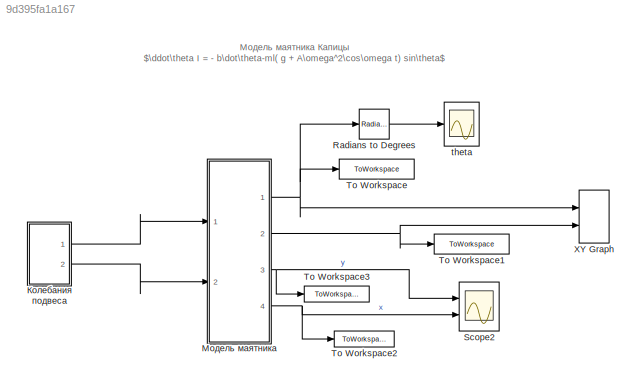
MODEL slx_9d395fa1a167
KIND model
CONFIG AbsTol = auto
CONFIG EnableMultiTasking = off
CONFIG FixedStep = auto
CONFIG MaxStep = 0.05
CONFIG MinStep = auto
CONFIG RelTol = 1e-3
CONFIG SampleTimeConstraint = Unconstrained
CONFIG SolverName = VariableStepAuto
CONFIG StartTime = 0.0
CONFIG StopTime = 10
BLOCK [Reference] Radians to Degrees  REF=simulink_extras/Transformations/Radians
to Degrees
  Ports = [1, 1]
  SourceBlock = simulink_extras/Transformations/Radians\nto Degrees
  SourceProductBaseCode = SL
  SourceType = RadiansToDegrees
BLOCK [Scope] Scope2
  Floating = off
  NumInputPorts = 2
  Ports = [2]
  ScopeSpecificationString = Simulink.scopes.TimeScopeBlockCfg('CurrentConfiguration', extmgr.ConfigurationSet(extmgr.Configuration('Core','General UI',true),extmgr.Configuration('Core','Source UI',true),extmgr.Configuration('Sources','WiredSimulink',true),extmgr.Configuration('Visuals','Time Domain',true,'SerializedDisplays',{struct('MinYLimReal','-3.67626','MaxYLimReal','23.63062','YLabelReal','','MinYLimMag','0.00000','Max...<+1744ch>
BLOCK [ToWorkspace] To Workspace
  FixptAsFi = on
  MaxDataPoints = inf
  Ports = [1]
  SampleTime = -1
  Save2DSignal = 2-D array (concatenate along first dimension)
  VariableName = theta
BLOCK [ToWorkspace] To Workspace1
  FixptAsFi = on
  MaxDataPoints = inf
  Ports = [1]
  SampleTime = -1
  Save2DSignal = 2-D array (concatenate along first dimension)
  VariableName = dtheta
BLOCK [ToWorkspace] To Workspace2
  FixptAsFi = on
  MaxDataPoints = inf
  Ports = [1]
  SampleTime = -1
  Save2DSignal = 2-D array (concatenate along first dimension)
  VariableName = x
BLOCK [ToWorkspace] To Workspace3
  FixptAsFi = on
  MaxDataPoints = inf
  Ports = [1]
  SampleTime = -1
  Save2DSignal = 2-D array (concatenate along first dimension)
  VariableName = y
BLOCK [Record] XY Graph
  CompatibilityTag = XY
  FileSettingsInternal = {"entries":[{"content":{"excelSettings":{"content":{},"type":"Streamout.ExcelSettings"}},"type":"Streamout.FileSettingStorage","uuid":"2b41360b-60dc-4d86-9c9c-00e56fdd2ad6"}],"packageUris":["http://schema.mathworks.com/mf0/streamout_blocks/R2020a"],"version":"1.0"}
  Layout = [1 1]
  Ports = [2]
  SignalsInternal = {"entries":[{"content":{"signals":[{"content":{"blockPath":["kapitsa/XY Graph"],"channel":[],"dimensions":[1],"domain":"kapitsa/XY Graph","lineColor":"#a2142f","plots":[1],"port":1,"sid":[""],"signalID":135,"signalName":"Модель маятника:1"},"type":"RecordBlkView.Signal","uuid":"1cd84f5e-f303-4587-a12b-356f26a2c5b0"},{"content":{"blockPath":["kapitsa/XY Graph"],"channel":[],"dimensions":[1],"domain...<+377ch>
  VisualizationBindings = {"xyplotplugin":{"info":[{"series":[{"bindingParametersList":[{"parameter":"X-Axis","signalID":135,"signalName":"РњРѕРґРµР»СЊ РјР°СЏС‚РЅРёРєР°:1"},{"parameter":"Y-Axis","signalID":139,"signalName":"РњРѕРґРµР»СЊ РјР°СЏС‚РЅРёРєР°:2"}],"seriesID":47545}],"subplotID":1}]}}
BLOCK [Scope] theta
  Floating = off
  NumInputPorts = 1
  Ports = [1]
  ScopeSpecificationString = Simulink.scopes.TimeScopeBlockCfg('CurrentConfiguration', extmgr.ConfigurationSet(extmgr.Configuration('Core','General UI',true),extmgr.Configuration('Core','Source UI',true),extmgr.Configuration('Sources','WiredSimulink',true,'DataLoggingVariableName','ScopeData1'),extmgr.Configuration('Visuals','Time Domain',true,'SerializedDisplays',{struct('MinYLimReal','89.9811','MaxYLimReal','270.26132','YLa...<+1383ch>
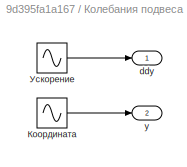
BLOCK [SubSystem] Колебания подвеса
  Ports = [0, 2]
  RequestExecContextInheritance = off
BLOCK [Outport] Колебания подвеса/ddy
BLOCK [Outport] Колебания подвеса/y
  Port = 2
BLOCK [Sin] Колебания подвеса/Координата
  Amplitude = A
  Frequency = w * (2 * pi)
  Phase = pi/2
  Ports = [0, 1]
  SampleTime = 0
BLOCK [Sin] Колебания подвеса/Ускорение
  Amplitude = -A * (w * (2* pi))^2
  Frequency = w * (2* pi)
  Phase = pi/2
  Ports = [0, 1]
  SampleTime = 0
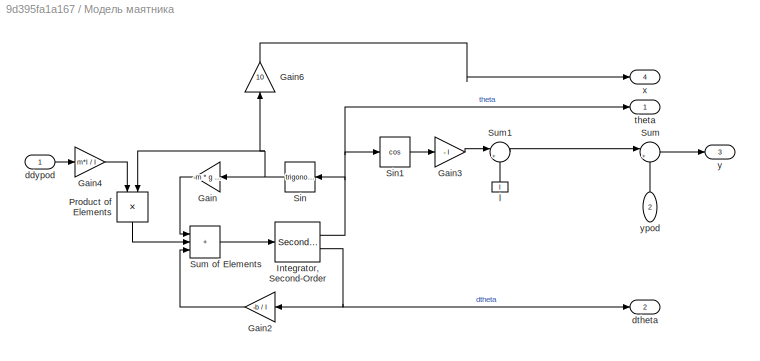
BLOCK [SubSystem] Модель маятника
  Ports = [2, 4]
  RequestExecContextInheritance = off
BLOCK [Gain] Модель маятника/Gain
  Gain = -m * g * l / I
  NameLocation = top
BLOCK [Gain] Модель маятника/Gain2
  Gain = -b / I
  NameLocation = top
BLOCK [Gain] Модель маятника/Gain3
  Gain = -  l
BLOCK [Gain] Модель маятника/Gain4
  Gain = m*l / I
BLOCK [Gain] Модель маятника/Gain6
  Gain = 10
  NameLocation = right
BLOCK [SecondOrderIntegrator] Модель маятника/Integrator, Second-Order
  ICX = deg2rad(startDegree)
  Ports = [1, 2]
BLOCK [Product] Модель маятника/Product of Elements
  Inputs = **
  NameLocation = left
  Ports = [2, 1]
BLOCK [Trigonometry] Модель маятника/Sin
  NameLocation = top
  Ports = [1, 1]
BLOCK [Trigonometry] Модель маятника/Sin1
  Operator = cos
  Ports = [1, 1]
BLOCK [Sum] Модель маятника/Sum
  Inputs = |++
  Ports = [2, 1]
BLOCK [Sum] Модель маятника/Sum of Elements
  IconShape = rectangular
  Inputs = +++
  Ports = [3, 1]
BLOCK [Sum] Модель маятника/Sum1
  Inputs = |++
  Ports = [2, 1]
BLOCK [Inport] Модель маятника/ddypod
BLOCK [Outport] Модель маятника/dtheta
  Port = 2
BLOCK [Constant] Модель маятника/l
  NameLocation = right
  Value = l
BLOCK [Outport] Модель маятника/theta
BLOCK [Outport] Модель маятника/x
  Port = 4
BLOCK [Outport] Модель маятника/y
  Port = 3
BLOCK [Inport] Модель маятника/ypod
  NameLocation = right
  Port = 2
ANNOTATION (root): Модель маятника Капицы $\ddot\theta I = - b\dot\theta-ml( g + A\omega^2\cos\omega t) sin\theta$
LINE Radians to Degrees:1 -> theta:1
LINE Колебания подвеса/Координата:1 -> Колебания подвеса/y:1
LINE Колебания подвеса/Ускорение:1 -> Колебания подвеса/ddy:1
LINE Колебания подвеса:1 -> Модель маятника:1
LINE Колебания подвеса:2 -> Модель маятника:2
LINE Модель маятника/Gain2:1 -> Модель маятника/Sum of Elements:3
LINE Модель маятника/Gain3:1 -> Модель маятника/Sum1:1
LINE Модель маятника/Gain4:1 -> Модель маятника/Product of Elements:1
LINE Модель маятника/Gain6:1 -> Модель маятника/x:1
LINE Модель маятника/Gain:1 -> Модель маятника/Sum of Elements:1
NET Модель маятника/Integrator, Second-Order:1 -> Модель маятника/Sin1:1, Модель маятника/Sin:1, Модель маятника/theta:1
NET Модель маятника/Integrator, Second-Order:2 -> Модель маятника/Gain2:1, Модель маятника/dtheta:1
LINE Модель маятника/Product of Elements:1 -> Модель маятника/Sum of Elements:2
LINE Модель маятника/Sin1:1 -> Модель маятника/Gain3:1
NET Модель маятника/Sin:1 -> Модель маятника/Gain6:1, Модель маятника/Gain:1, Модель маятника/Product of Elements:2
LINE Модель маятника/Sum of Elements:1 -> Модель маятника/Integrator, Second-Order:1
LINE Модель маятника/Sum1:1 -> Модель маятника/Sum:1
LINE Модель маятника/Sum:1 -> Модель маятника/y:1
LINE Модель маятника/ddypod:1 -> Модель маятника/Gain4:1
LINE Модель маятника/l:1 -> Модель маятника/Sum1:2
LINE Модель маятника/ypod:1 -> Модель маятника/Sum:2
NET Модель маятника:1 -> Radians to Degrees:1, To Workspace:1, XY Graph:1
NET Модель маятника:2 -> To Workspace1:1, XY Graph:2
NET Модель маятника:3 -> Scope2:1, To Workspace3:1
NET Модель маятника:4 -> Scope2:2, To Workspace2:1
note: NET lines group one-source signal fan-out (src -> all destinations, sorted); 1:1 wires keep LINE
